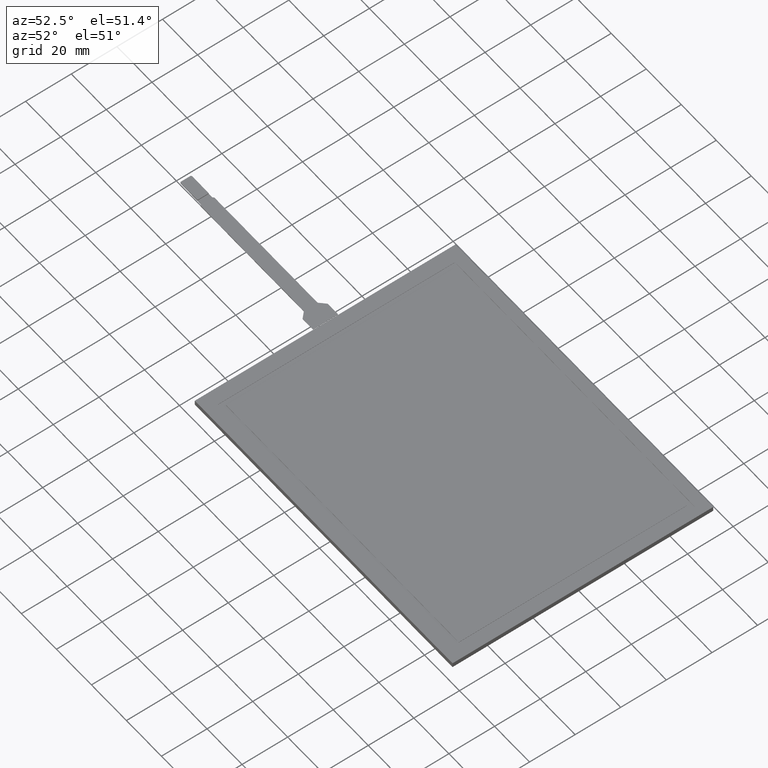
[diagram: clean part render]
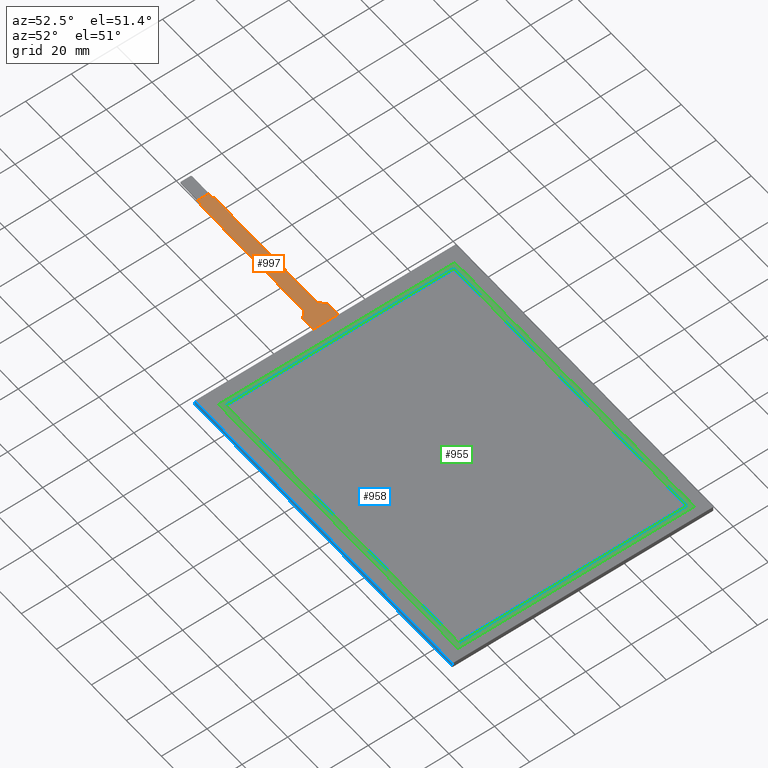
[diagram: same view with three faces highlighted in distinct colors, each labeled with its STEP entity id]
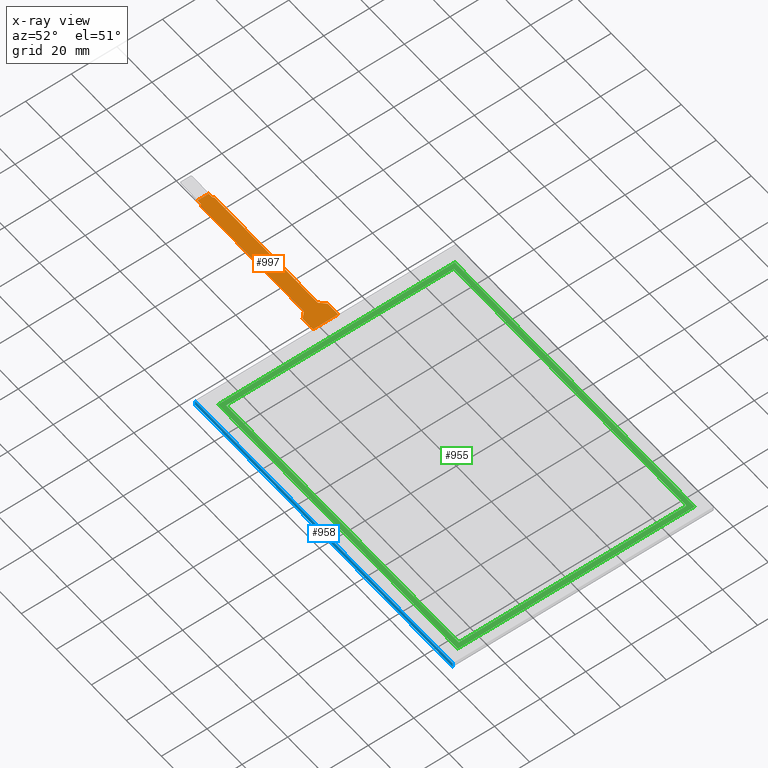
[diagram: x-ray of the same camera — body ghosted, the three highlighted faces saturated]
A machine part, auxiliary view with three faces highlighted in distinct colors.
The next image is the same camera in x-ray (body ghosted, the three faces saturated) — at least one of them is partly hidden behind the body in this view.
Their STEP definitions:

[orange] entity #997 — the highlighted planar face has unit normal (0, 0, 1).
#87=FACE_OUTER_BOUND('',#141,.T.);
#141=EDGE_LOOP('',(#877,#878,#879,#880,#881,#882,#883,#884,#885,#886,#887,
#888));
#233=LINE('',#1552,#359);
#236=LINE('',#1558,#362);
#240=LINE('',#1567,#366);
#244=LINE('',#1575,#370);
#247=LINE('',#1581,#373);
#250=LINE('',#1587,#376);
#253=LINE('',#1593,#379);
#256=LINE('',#1598,#382);
#258=LINE('',#1602,#384);
#261=LINE('',#1608,#387);
#264=LINE('',#1614,#390);
#267=LINE('',#1619,#393);
#359=VECTOR('',#1276,10.);
#362=VECTOR('',#1281,10.);
#366=VECTOR('',#1289,10.);
#370=VECTOR('',#1295,10.);
#373=VECTOR('',#1300,10.);
#376=VECTOR('',#1305,10.);
#379=VECTOR('',#1310,10.);
#382=VECTOR('',#1315,10.);
#384=VECTOR('',#1319,10.);
#387=VECTOR('',#1324,10.);
#390=VECTOR('',#1329,10.);
#393=VECTOR('',#1334,10.);
#464=VERTEX_POINT('',#1549);
#465=VERTEX_POINT('',#1551);
#467=VERTEX_POINT('',#1557);
#469=VERTEX_POINT('',#1565);
#470=VERTEX_POINT('',#1566);
#473=VERTEX_POINT('',#1574);
#475=VERTEX_POINT('',#1580);
#477=VERTEX_POINT('',#1586);
#479=VERTEX_POINT('',#1592);
#481=VERTEX_POINT('',#1601);
#483=VERTEX_POINT('',#1607);
#485=VERTEX_POINT('',#1613);
#589=EDGE_CURVE('',#465,#464,#233,.T.);
#592=EDGE_CURVE('',#467,#465,#236,.T.);
#596=EDGE_CURVE('',#469,#470,#240,.T.);
#600=EDGE_CURVE('',#470,#473,#244,.T.);
#603=EDGE_CURVE('',#473,#475,#247,.T.);
#606=EDGE_CURVE('',#475,#477,#250,.T.);
#609=EDGE_CURVE('',#477,#479,#253,.T.);
#612=EDGE_CURVE('',#479,#467,#256,.T.);
#614=EDGE_CURVE('',#464,#481,#258,.T.);
#617=EDGE_CURVE('',#481,#483,#261,.T.);
#620=EDGE_CURVE('',#483,#485,#264,.T.);
#623=EDGE_CURVE('',#485,#469,#267,.T.);
#877=ORIENTED_EDGE('',*,*,#592,.T.);
#878=ORIENTED_EDGE('',*,*,#589,.T.);
#879=ORIENTED_EDGE('',*,*,#614,.T.);
#880=ORIENTED_EDGE('',*,*,#617,.T.);
#881=ORIENTED_EDGE('',*,*,#620,.T.);
#882=ORIENTED_EDGE('',*,*,#623,.T.);
#883=ORIENTED_EDGE('',*,*,#596,.T.);
#884=ORIENTED_EDGE('',*,*,#600,.T.);
#885=ORIENTED_EDGE('',*,*,#603,.T.);
#886=ORIENTED_EDGE('',*,*,#606,.T.);
#887=ORIENTED_EDGE('',*,*,#609,.T.);
#888=ORIENTED_EDGE('',*,*,#612,.T.);
#945=PLANE('',#1082);
#997=ADVANCED_FACE('',(#87),#945,.T.);
#1082=AXIS2_PLACEMENT_3D('',#1621,#1336,#1337);
#1276=DIRECTION('',(1.,6.47630097698008E-16,0.));
#1281=DIRECTION('',(0.,-1.,0.));
#1289=DIRECTION('',(0.,1.,0.));
#1295=DIRECTION('',(-1.,1.8503717077086E-16,0.));
#1300=DIRECTION('',(-0.707106781186549,-0.707106781186546,0.));
#1305=DIRECTION('',(-1.,9.40866970021319E-18,0.));
#1310=DIRECTION('',(-0.707106781186554,-0.707106781186541,0.));
#1315=DIRECTION('',(-1.,2.31296463463574E-16,0.));
#1319=DIRECTION('',(0.707106781186544,-0.707106781186551,0.));
#1324=DIRECTION('',(1.,0.,0.));
#1329=DIRECTION('',(0.70710678118655,-0.707106781186545,0.));
#1334=DIRECTION('',(1.,-1.8503717077086E-16,0.));
#1336=DIRECTION('center_axis',(0.,0.,1.));
#1337=DIRECTION('ref_axis',(1.,0.,0.));
#1549=CARTESIAN_POINT('',(-142.69,-2.50000000000002,0.2));
#1551=CARTESIAN_POINT('',(-144.69,-2.50000000000002,0.2));
#1552=CARTESIAN_POINT('',(-154.69,-2.50000000000003,0.2));
#1557=CARTESIAN_POINT('',(-144.69,2.49999999999997,0.2));
#1558=CARTESIAN_POINT('',(-144.69,-1.25000000000003,0.2));
#1565=CARTESIAN_POINT('',(-74.69,-5.50000000000004,0.2));
#1566=CARTESIAN_POINT('',(-74.69,5.49999999999996,0.2));
#1567=CARTESIAN_POINT('',(-74.69,-5.50000000000004,0.2));
#1574=CARTESIAN_POINT('',(-80.69,5.49999999999997,0.2));
#1575=CARTESIAN_POINT('',(-74.69,5.49999999999996,0.2));
#1580=CARTESIAN_POINT('',(-83.19,2.99999999999996,0.2));
#1581=CARTESIAN_POINT('',(-80.69,5.49999999999997,0.2));
#1586=CARTESIAN_POINT('',(-142.19,2.99999999999996,0.2));
#1587=CARTESIAN_POINT('',(-83.19,2.99999999999996,0.2));
#1592=CARTESIAN_POINT('',(-142.69,2.49999999999996,0.2));
#1593=CARTESIAN_POINT('',(-142.19,2.99999999999996,0.2));
#1598=CARTESIAN_POINT('',(-142.69,2.49999999999996,0.2));
#1601=CARTESIAN_POINT('',(-142.19,-3.00000000000003,0.2));
#1602=CARTESIAN_POINT('',(-142.69,-2.50000000000002,0.2));
#1607=CARTESIAN_POINT('',(-83.19,-3.00000000000003,0.2));
#1608=CARTESIAN_POINT('',(-142.19,-3.00000000000003,0.2));
#1613=CARTESIAN_POINT('',(-80.69,-5.50000000000003,0.2));
#1614=CARTESIAN_POINT('',(-83.19,-3.00000000000003,0.2));
#1619=CARTESIAN_POINT('',(-80.69,-5.50000000000003,0.2));
#1621=CARTESIAN_POINT('Origin',(-114.69,-3.49720252756924E-14,0.2));

[blue] entity #958 — the highlighted planar face has unit normal (0, -1, 0).
#48=FACE_OUTER_BOUND('',#102,.T.);
#102=EDGE_LOOP('',(#677,#678,#679,#680));
#169=LINE('',#1397,#295);
#173=LINE('',#1404,#299);
#174=LINE('',#1407,#300);
#175=LINE('',#1408,#301);
#295=VECTOR('',#1132,10.);
#299=VECTOR('',#1138,10.);
#300=VECTOR('',#1141,10.);
#301=VECTOR('',#1142,10.);
#413=VERTEX_POINT('',#1394);
#414=VERTEX_POINT('',#1396);
#416=VERTEX_POINT('',#1402);
#417=VERTEX_POINT('',#1406);
#513=EDGE_CURVE('',#413,#414,#169,.T.);
#517=EDGE_CURVE('',#413,#416,#173,.T.);
#518=EDGE_CURVE('',#417,#416,#174,.T.);
#519=EDGE_CURVE('',#414,#417,#175,.T.);
#677=ORIENTED_EDGE('',*,*,#513,.F.);
#678=ORIENTED_EDGE('',*,*,#517,.T.);
#679=ORIENTED_EDGE('',*,*,#518,.F.);
#680=ORIENTED_EDGE('',*,*,#519,.F.);
#912=PLANE('',#1031);
#958=ADVANCED_FACE('',(#48),#912,.T.);
#1031=AXIS2_PLACEMENT_3D('',#1405,#1139,#1140);
#1132=DIRECTION('',(1.,1.80891735173142E-16,0.));
#1138=DIRECTION('',(0.,0.,-1.));
#1139=DIRECTION('center_axis',(1.80891735173142E-16,-1.,0.));
#1140=DIRECTION('ref_axis',(-1.,-1.80891735173142E-16,0.));
#1141=DIRECTION('',(-1.,-1.80891735173142E-16,0.));
#1142=DIRECTION('',(0.,0.,-1.));
#1394=CARTESIAN_POINT('',(-74.69,-57.37,0.));
#1396=CARTESIAN_POINT('',(72.61,-57.37,0.));
#1397=CARTESIAN_POINT('',(-74.69,-57.37,0.));
#1402=CARTESIAN_POINT('',(-74.69,-57.37,-2.1));
#1404=CARTESIAN_POINT('',(-74.69,-57.37,0.));
#1405=CARTESIAN_POINT('Origin',(72.61,-57.37,0.));
#1406=CARTESIAN_POINT('',(72.61,-57.37,-2.1));
#1407=CARTESIAN_POINT('',(-74.69,-57.37,-2.1));
#1408=CARTESIAN_POINT('',(72.61,-57.37,0.));

[green] entity #955 — the highlighted planar face has unit normal (0, 0, -1).
#35=FACE_BOUND('',#98,.T.);
#45=FACE_OUTER_BOUND('',#97,.T.);
#97=EDGE_LOOP('',(#657,#658,#659,#660));
#98=EDGE_LOOP('',(#661,#662,#663,#664));
#145=LINE('',#1348,#271);
#149=LINE('',#1355,#275);
#152=LINE('',#1361,#278);
#154=LINE('',#1364,#280);
#157=LINE('',#1372,#283);
#161=LINE('',#1379,#287);
#164=LINE('',#1385,#290);
#166=LINE('',#1388,#292);
#271=VECTOR('',#1090,10.);
#275=VECTOR('',#1096,10.);
#278=VECTOR('',#1101,10.);
#280=VECTOR('',#1105,10.);
#283=VECTOR('',#1110,10.);
#287=VECTOR('',#1116,10.);
#290=VECTOR('',#1121,10.);
#292=VECTOR('',#1125,10.);
#397=VERTEX_POINT('',#1345);
#398=VERTEX_POINT('',#1347);
#400=VERTEX_POINT('',#1353);
#402=VERTEX_POINT('',#1359);
#405=VERTEX_POINT('',#1369);
#406=VERTEX_POINT('',#1371);
#408=VERTEX_POINT('',#1377);
#410=VERTEX_POINT('',#1383);
#489=EDGE_CURVE('',#397,#398,#145,.T.);
#493=EDGE_CURVE('',#400,#397,#149,.T.);
#496=EDGE_CURVE('',#402,#400,#152,.T.);
#498=EDGE_CURVE('',#398,#402,#154,.T.);
#501=EDGE_CURVE('',#405,#406,#157,.T.);
#505=EDGE_CURVE('',#408,#405,#161,.T.);
#508=EDGE_CURVE('',#410,#408,#164,.T.);
#510=EDGE_CURVE('',#406,#410,#166,.T.);
#657=ORIENTED_EDGE('',*,*,#510,.F.);
#658=ORIENTED_EDGE('',*,*,#501,.F.);
#659=ORIENTED_EDGE('',*,*,#505,.F.);
#660=ORIENTED_EDGE('',*,*,#508,.F.);
#661=ORIENTED_EDGE('',*,*,#498,.F.);
#662=ORIENTED_EDGE('',*,*,#489,.F.);
#663=ORIENTED_EDGE('',*,*,#493,.F.);
#664=ORIENTED_EDGE('',*,*,#496,.F.);
#909=PLANE('',#1028);
#955=ADVANCED_FACE('',(#45,#35),#909,.F.);
#1028=AXIS2_PLACEMENT_3D('',#1389,#1126,#1127);
#1090=DIRECTION('',(1.,0.,0.));
#1096=DIRECTION('',(0.,-1.,0.));
#1101=DIRECTION('',(-1.,0.,0.));
#1105=DIRECTION('',(0.,1.,0.));
#1110=DIRECTION('',(-3.4206756006167E-16,1.,0.));
#1116=DIRECTION('',(-1.,-6.48400072784439E-17,0.));
#1121=DIRECTION('',(0.,-1.,0.));
#1125=DIRECTION('',(1.,0.,0.));
#1126=DIRECTION('center_axis',(0.,0.,-1.));
#1127=DIRECTION('ref_axis',(-1.,0.,0.));
#1345=CARTESIAN_POINT('',(-66.49,-49.93,-0.1));
#1347=CARTESIAN_POINT('',(66.49,-49.93,-0.1));
#1348=CARTESIAN_POINT('',(66.49,-49.93,-0.1));
#1353=CARTESIAN_POINT('',(-66.49,49.93,-0.1));
#1355=CARTESIAN_POINT('',(-66.49,-49.93,-0.1));
#1359=CARTESIAN_POINT('',(66.49,49.93,-0.1));
#1361=CARTESIAN_POINT('',(-66.49,49.93,-0.1));
#1364=CARTESIAN_POINT('',(66.49,49.93,-0.1));
#1369=CARTESIAN_POINT('',(-68.49,-51.93,-0.1));
#1371=CARTESIAN_POINT('',(-68.49,51.93,-0.1));
#1372=CARTESIAN_POINT('',(-68.49,51.93,-0.1));
#1377=CARTESIAN_POINT('',(68.49,-51.93,-0.1));
#1379=CARTESIAN_POINT('',(-68.49,-51.93,-0.1));
#1383=CARTESIAN_POINT('',(68.49,51.93,-0.1));
#1385=CARTESIAN_POINT('',(68.49,-51.93,-0.1));
#1388=CARTESIAN_POINT('',(68.49,51.93,-0.1));
#1389=CARTESIAN_POINT('Origin',(0.,-8.88178419700125E-15,-0.1));